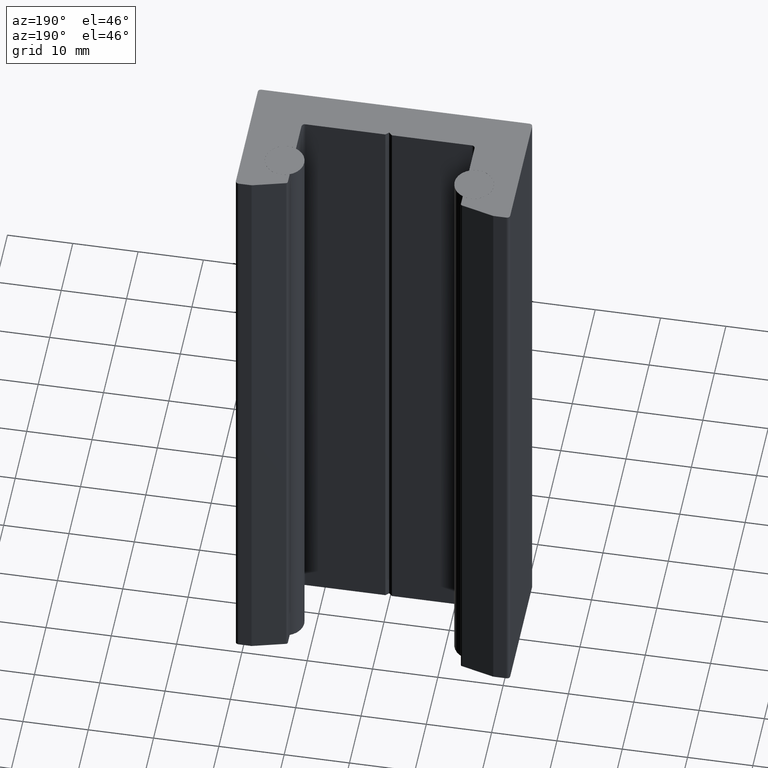
[diagram: clean part render]
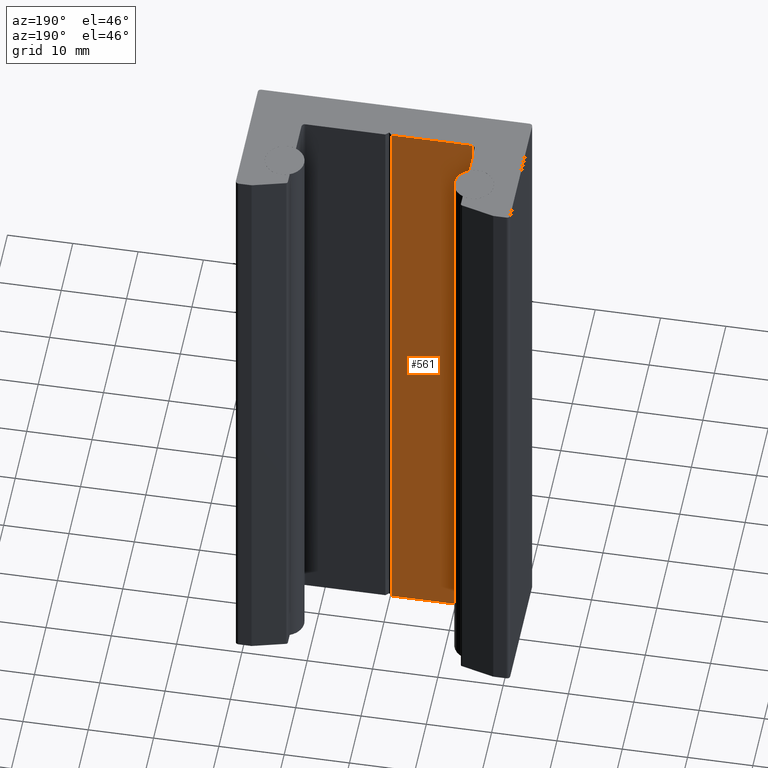
[diagram: same view with one face highlighted and labeled with its STEP entity id]
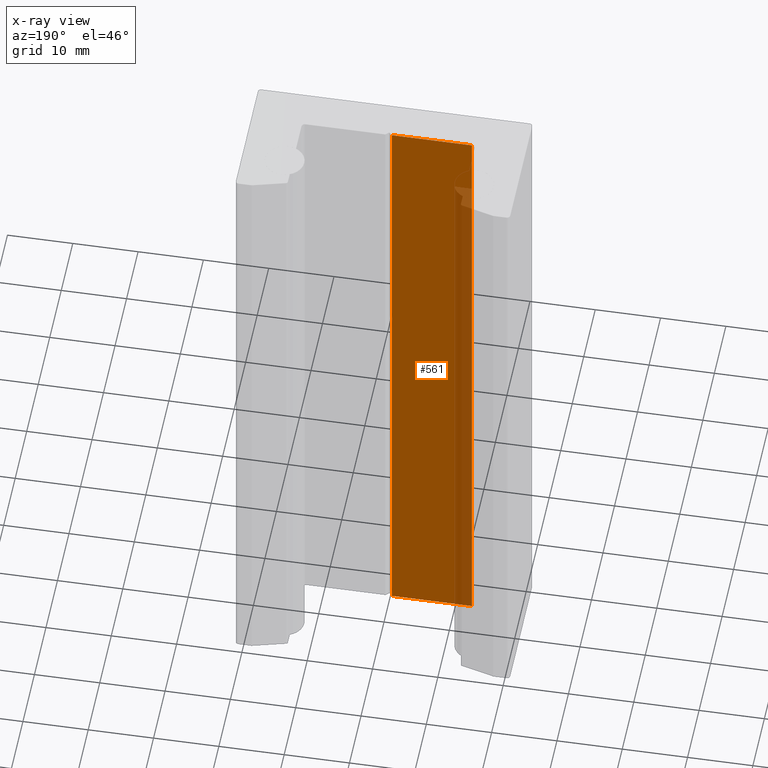
[diagram: x-ray of the same camera — body ghosted, the highlighted face saturated]
A machine part, auxiliary view. The second image highlights one B-rep face of the part: STEP entity #561.
The next image is the same camera in x-ray: the body ghosted, the highlighted face saturated — about 20% of this face is hidden behind the body in this view.
In plain terms, the highlighted planar face has unit normal (-0, 1, 0).
Its self-contained STEP definition (entity closure, byte-faithful):
#42=PLANE('',#676);
#70=FACE_OUTER_BOUND('',#100,.T.);
#100=EDGE_LOOP('',(#475,#476,#477,#478));
#124=LINE('',#916,#180);
#134=LINE('',#943,#190);
#157=LINE('',#1002,#213);
#158=LINE('',#1003,#214);
#180=VECTOR('',#735,10.);
#190=VECTOR('',#759,10.);
#213=VECTOR('',#824,10.);
#214=VECTOR('',#825,10.);
#265=VERTEX_POINT('',#913);
#266=VERTEX_POINT('',#915);
#276=VERTEX_POINT('',#941);
#291=VERTEX_POINT('',#1001);
#319=EDGE_CURVE('',#266,#265,#124,.T.);
#333=EDGE_CURVE('',#276,#265,#134,.T.);
#362=EDGE_CURVE('',#276,#291,#157,.T.);
#363=EDGE_CURVE('',#266,#291,#158,.T.);
#475=ORIENTED_EDGE('',*,*,#333,.F.);
#476=ORIENTED_EDGE('',*,*,#362,.T.);
#477=ORIENTED_EDGE('',*,*,#363,.F.);
#478=ORIENTED_EDGE('',*,*,#319,.T.);
#561=ADVANCED_FACE('',(#70),#42,.T.);
#676=AXIS2_PLACEMENT_3D('',#1000,#822,#823);
#735=DIRECTION('',(-1.,-1.7415263131375E-16,0.));
#759=DIRECTION('',(0.,0.,-1.));
#822=DIRECTION('center_axis',(-1.7415263131375E-16,1.,0.));
#823=DIRECTION('ref_axis',(0.,0.,1.));
#824=DIRECTION('',(1.,1.7415263131375E-16,0.));
#825=DIRECTION('',(0.,0.,1.));
#913=CARTESIAN_POINT('',(-12.75,6.,-50.));
#915=CARTESIAN_POINT('',(-0.5,6.,-50.));
#916=CARTESIAN_POINT('',(-0.5,6.,-50.));
#941=CARTESIAN_POINT('',(-12.75,6.,50.));
#943=CARTESIAN_POINT('',(-12.75,6.,0.));
#1000=CARTESIAN_POINT('Origin',(-13.25,6.,0.));
#1001=CARTESIAN_POINT('',(-0.5,6.,50.));
#1002=CARTESIAN_POINT('',(-0.5,6.,50.));
#1003=CARTESIAN_POINT('',(-0.5,6.,0.));